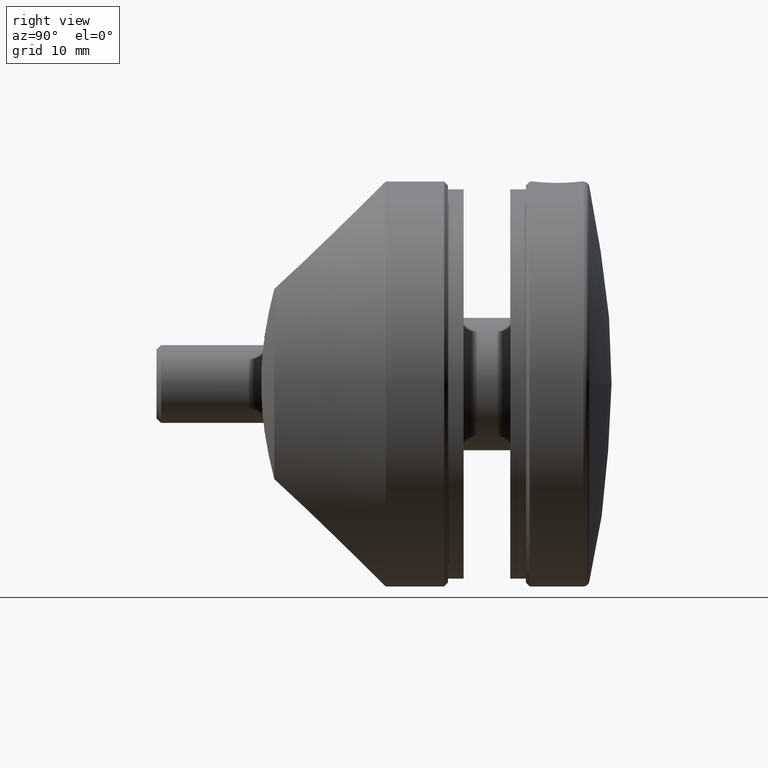
[diagram: clean part render]
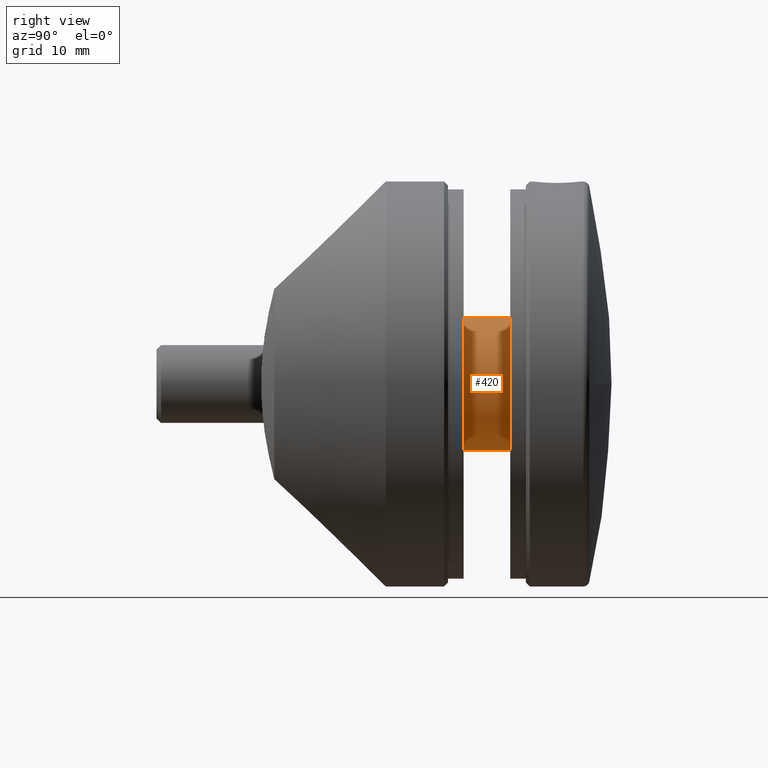
[diagram: same view with one face highlighted and labeled with its STEP entity id]
A machine part, right view. The second image highlights one B-rep face of the part: STEP entity #420.
In plain terms, the highlighted cylindrical surface (partial cylindrical patch) has radius 8.5 mm, axis along (0, -1, 0).
Its self-contained STEP definition (entity closure, byte-faithful):
#279 = DIRECTION ( 'NONE',  ( -0.000000000000000000, 1.000000000000000000, -0.000000000000000000 ) ) ;
#384 = EDGE_CURVE ( 'NONE', #10733, #3765, #7414, .T. ) ;
#420 = ADVANCED_FACE ( 'NONE', ( #10247 ), #9111, .T. ) ;
#832 = VERTEX_POINT ( 'NONE', #15492 ) ;
#1056 = DIRECTION ( 'NONE',  ( -0.000000000000000000, 1.000000000000000000, -0.000000000000000000 ) ) ;
#1946 = CARTESIAN_POINT ( 'NONE',  ( 1.586698419969104475E-15, -2.000000000000000000, -8.500000000000000000 ) ) ;
#2072 = CARTESIAN_POINT ( 'NONE',  ( 1.586698419969104475E-15, 4.000000000000000000, -8.500000000000000000 ) ) ;
#2586 = LINE ( 'NONE', #2072, #8740 ) ;
#2726 = CARTESIAN_POINT ( 'NONE',  ( 1.586698419969104475E-15, 4.000000000000000000, -8.500000000000000000 ) ) ;
#2729 = AXIS2_PLACEMENT_3D ( 'NONE', #7716, #279, #15105 ) ;
#2943 = EDGE_CURVE ( 'NONE', #10733, #5427, #2586, .T. ) ;
#3320 = DIRECTION ( 'NONE',  ( 0.000000000000000000, 0.000000000000000000, 1.000000000000000000 ) ) ;
#3765 = VERTEX_POINT ( 'NONE', #11828 ) ;
#4745 = AXIS2_PLACEMENT_3D ( 'NONE', #10731, #1056, #3320 ) ;
#4992 = VECTOR ( 'NONE', #7887, 1000.000000000000000 ) ;
#5398 = EDGE_CURVE ( 'NONE', #5427, #832, #12879, .T. ) ;
#5401 = DIRECTION ( 'NONE',  ( -0.000000000000000000, 1.000000000000000000, -0.000000000000000000 ) ) ;
#5427 = VERTEX_POINT ( 'NONE', #2726 ) ;
#7414 = CIRCLE ( 'NONE', #13181, 8.500000000000000000 ) ;
#7716 = CARTESIAN_POINT ( 'NONE',  ( 5.457486406938542366E-16, 4.000000000000000000, 0.000000000000000000 ) ) ;
#7887 = DIRECTION ( 'NONE',  ( -0.000000000000000000, 1.000000000000000000, -0.000000000000000000 ) ) ;
#8740 = VECTOR ( 'NONE', #11626, 1000.000000000000000 ) ;
#9111 = CYLINDRICAL_SURFACE ( 'NONE', #4745, 8.500000000000000000 ) ;
#9128 = ORIENTED_EDGE ( 'NONE', *, *, #2943, .F. ) ;
#9288 = CARTESIAN_POINT ( 'NONE',  ( 5.457486406938542366E-16, 4.000000000000000000, 8.500000000000000000 ) ) ;
#10247 = FACE_OUTER_BOUND ( 'NONE', #10342, .T. ) ;
#10342 = EDGE_LOOP ( 'NONE', ( #9128, #13948, #13465, #10516 ) ) ;
#10516 = ORIENTED_EDGE ( 'NONE', *, *, #5398, .F. ) ;
#10731 = CARTESIAN_POINT ( 'NONE',  ( 5.457486406938542366E-16, 4.000000000000000000, 0.000000000000000000 ) ) ;
#10733 = VERTEX_POINT ( 'NONE', #1946 ) ;
#11626 = DIRECTION ( 'NONE',  ( -0.000000000000000000, 1.000000000000000000, -0.000000000000000000 ) ) ;
#11828 = CARTESIAN_POINT ( 'NONE',  ( 5.457486406938542366E-16, -2.000000000000000000, 8.500000000000000000 ) ) ;
#12879 = CIRCLE ( 'NONE', #2729, 8.500000000000000000 ) ;
#13181 = AXIS2_PLACEMENT_3D ( 'NONE', #14088, #5401, #13976 ) ;
#13465 = ORIENTED_EDGE ( 'NONE', *, *, #15691, .T. ) ;
#13948 = ORIENTED_EDGE ( 'NONE', *, *, #384, .T. ) ;
#13976 = DIRECTION ( 'NONE',  ( 0.000000000000000000, 0.000000000000000000, 1.000000000000000000 ) ) ;
#14088 = CARTESIAN_POINT ( 'NONE',  ( 5.457486406938542366E-16, -2.000000000000000000, 0.000000000000000000 ) ) ;
#15105 = DIRECTION ( 'NONE',  ( 0.000000000000000000, 0.000000000000000000, 1.000000000000000000 ) ) ;
#15329 = LINE ( 'NONE', #9288, #4992 ) ;
#15492 = CARTESIAN_POINT ( 'NONE',  ( 5.457486406938542366E-16, 4.000000000000000000, 8.500000000000000000 ) ) ;
#15691 = EDGE_CURVE ( 'NONE', #3765, #832, #15329, .T. ) ;